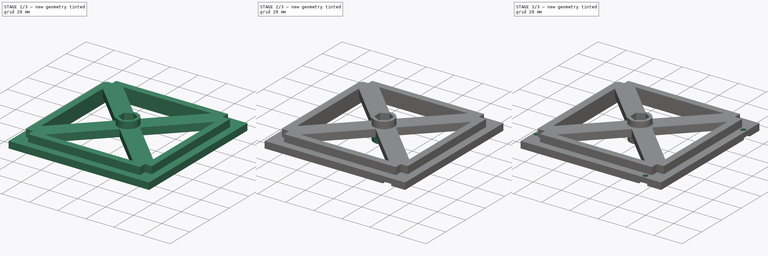
[diagram: build sequence overview — one tinted view per stage of 3, left to right]
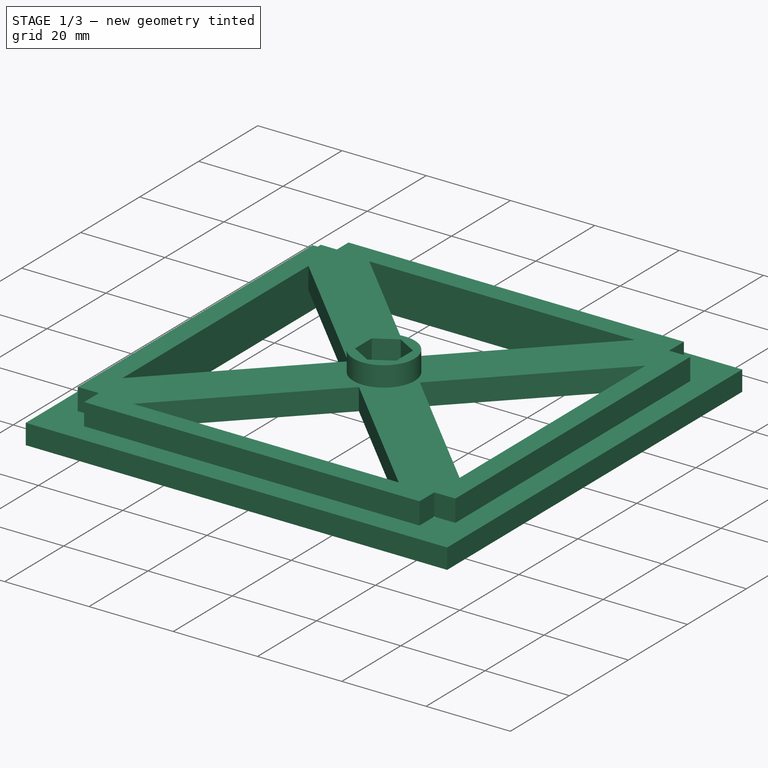
[diagram: stage 1 of 3 — iso view after this stage's code; geometry added in this stage tinted green]
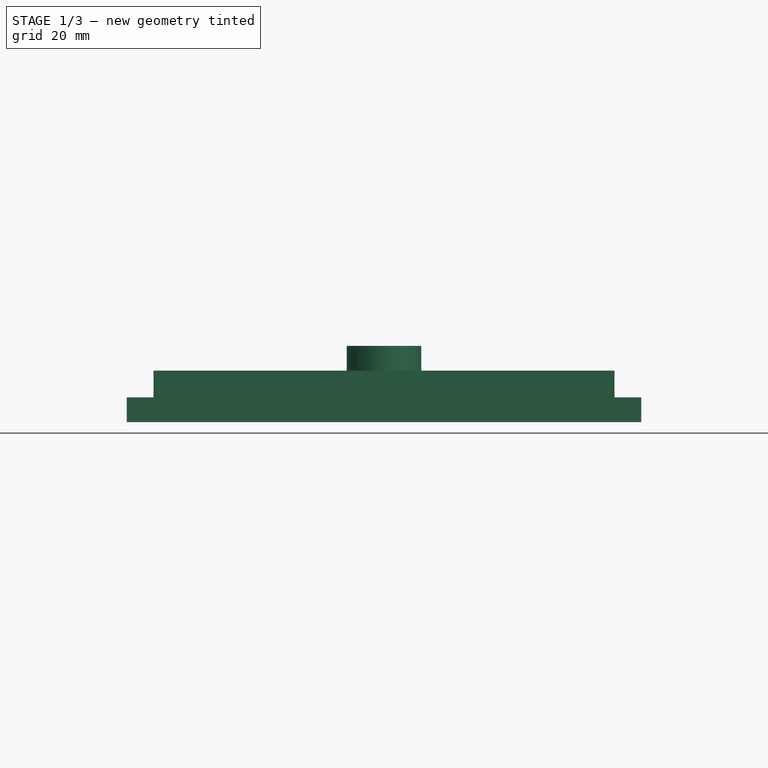
[diagram: stage 1 of 3 — front view after this stage's code; geometry added in this stage tinted green]
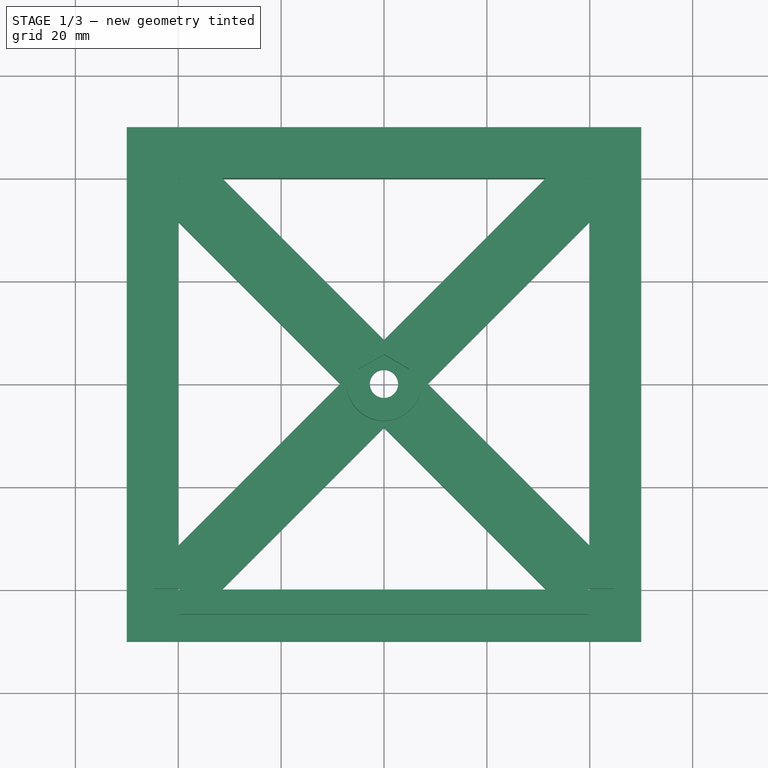
[diagram: stage 1 of 3 — top view after this stage's code; geometry added in this stage tinted green]
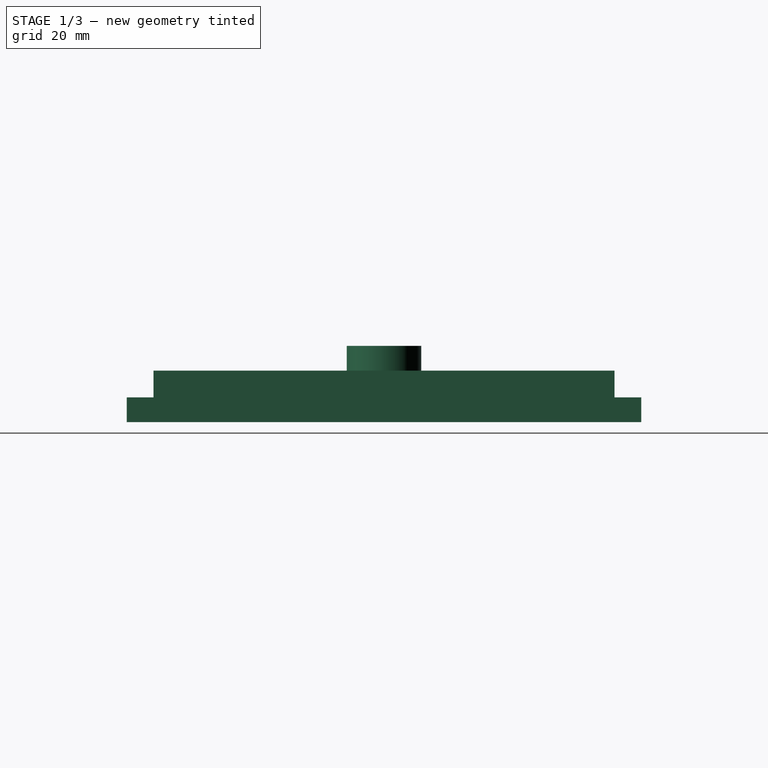
[diagram: stage 1 of 3 — right view after this stage's code; geometry added in this stage tinted green]
FCSTD DOCUMENT  (FreeCAD 0.21R33771 (Git))
Label: base
License: All rights reserved
LicenseURL: http://en.wikipedia.org/wiki/All_rights_reserved
objects: Sketcher::SketchObject×6, PartDesign::Pad×4, PartDesign::Pocket×2, PartDesign::PolarPattern×1, PartDesign::Fillet×1, PartDesign::Body×1
note: 22 computed .brp shape members not serialized (recipe doc carries the construction recipe); baked Part::Feature solids carry a one-line shape summary decoded from their .brp

FEATURE [Sketcher::SketchObject] Sketch
  FullyConstrained = true
  MapMode = 5
  Support = -> [XY_Plane]
  sketch-geometry (10):
    g0: LineSegment StartX=-40 StartY=40 StartZ=0 EndX=-40 EndY=-40 EndZ=0
    g1: LineSegment StartX=-40 StartY=-40 StartZ=0 EndX=40 EndY=-40 EndZ=0
    g2: LineSegment StartX=40 StartY=-40 StartZ=0 EndX=40 EndY=40 EndZ=0
    g3: LineSegment StartX=40 StartY=40 StartZ=0 EndX=-40 EndY=40 EndZ=0
    g4: GeomPoint X=0 Y=0 Z=0
    g5: LineSegment StartX=-50 StartY=50 StartZ=0 EndX=-50 EndY=-50 EndZ=0
    g6: LineSegment StartX=-50 StartY=-50 StartZ=0 EndX=50 EndY=-50 EndZ=0
    g7: LineSegment StartX=50 StartY=-50 StartZ=0 EndX=50 EndY=50 EndZ=0
    g8: LineSegment StartX=50 StartY=50 StartZ=0 EndX=-50 EndY=50 EndZ=0
    g9: GeomPoint X=0 Y=0 Z=0
  constraints (24):
    c: Coincident(g0,g1)
    c: Coincident(g1,g2)
    c: Coincident(g2,g3)
    c: Coincident(g3,g0)
    c: Horizontal(g1)
    c: Horizontal(g3)
    c: Vertical(g0)
    c: Vertical(g2)
    c: Symmetric(g1,g0,g4)
    c: Coincident(g4,g-1)
    c: DistanceX(g3,g3) = 80
    c: DistanceY(g2,g2) = 80
    c: Coincident(g5,g6)
    c: Coincident(g6,g7)
    c: Coincident(g7,g8)
    c: Coincident(g8,g5)
    c: Horizontal(g6)
    c: Horizontal(g8)
    c: Vertical(g5)
    c: Vertical(g7)
    c: Symmetric(g6,g5,g9)
    c: Coincident(g9,g4)
    c: DistanceX(g8,g8) = 100
    c: DistanceY(g7,g7) = 100
FEATURE [PartDesign::Pad] Pad  label="latches"
  Direction = (0,0,1)
  Length = 4.8
  Length2 = 10
  Profile = -> Sketch
  ReferenceAxis = -> Sketch [N_Axis]
  Refine = true
  Type = 0
FEATURE [Sketcher::SketchObject] Sketch001
  FullyConstrained = false
  MapMode = 5
  Placement = pos=(0,0,4.8) rot=(0,0,1;0rad)
  Support = -> [Pad]
  sketch-geometry (29):
    g0: LineSegment StartX=-44.8 StartY=39.8 StartZ=0 EndX=-44.8 EndY=-39.8 EndZ=0
    g1: GeomPoint X=-42.25 Y=0 Z=0
    g2: LineSegment StartX=44.8 StartY=-39.8 StartZ=0 EndX=44.8 EndY=39.8 EndZ=0
    g3: GeomPoint X=42.25 Y=0 Z=0
    g4: LineSegment StartX=-39.8 StartY=-44.8 StartZ=0 EndX=39.8 EndY=-44.8 EndZ=0
    g5: GeomPoint X=0 Y=-42.25 Z=0
    g6: LineSegment StartX=39.8 StartY=44.8 StartZ=0 EndX=-39.8 EndY=44.8 EndZ=0
    g7: GeomPoint X=0 Y=42.25 Z=0
    g8: LineSegment StartX=-39.8 StartY=39.8 StartZ=0 EndX=-39.8 EndY=44.8 EndZ=0
    g9: LineSegment StartX=-44.8 StartY=-39.8 StartZ=0 EndX=-39.8 EndY=-39.8 EndZ=0
    g10: LineSegment StartX=-39.8 StartY=-39.8 StartZ=0 EndX=-39.8 EndY=-44.8 EndZ=0
    g11: LineSegment StartX=44.8 StartY=-39.8 StartZ=0 EndX=39.8 EndY=-39.8 EndZ=0
    g12: LineSegment StartX=39.8 StartY=44.8 StartZ=0 EndX=39.8 EndY=39.8 EndZ=0
    g13: LineSegment StartX=-31.5 StartY=40 StartZ=0 EndX=0 EndY=8.5 EndZ=0
    g14: LineSegment StartX=-40 StartY=31.5 StartZ=0 EndX=-8.5 EndY=3.6e-15 EndZ=0
    g15: LineSegment StartX=0 StartY=8.5 StartZ=0 EndX=31.5 EndY=40 EndZ=0
    g16: LineSegment StartX=8.5 StartY=0 StartZ=0 EndX=40 EndY=31.5 EndZ=0
    g17: LineSegment StartX=8.5 StartY=0 StartZ=0 EndX=40 EndY=-31.5 EndZ=0
    g18: LineSegment StartX=0 StartY=-8.5 StartZ=0 EndX=31.5 EndY=-40 EndZ=0
    g19: LineSegment StartX=0 StartY=-8.5 StartZ=0 EndX=-31.5 EndY=-40 EndZ=0
    g20: LineSegment StartX=-8.5 StartY=3.6e-15 StartZ=0 EndX=-40 EndY=-31.5 EndZ=0
    g21: LineSegment StartX=-31.5 StartY=40 StartZ=0 EndX=31.5 EndY=40 EndZ=0
    g22: LineSegment StartX=40 StartY=31.5 StartZ=0 EndX=40 EndY=-31.5 EndZ=0
    g23: LineSegment StartX=31.5 StartY=-40 StartZ=0 EndX=-31.5 EndY=-40 EndZ=0
    g24: LineSegment StartX=-40 StartY=31.5 StartZ=0 EndX=-40 EndY=-31.5 EndZ=0
    g25: LineSegment StartX=-44.8 StartY=39.8 StartZ=0 EndX=-39.8 EndY=39.8 EndZ=0
    g26: LineSegment StartX=39.8 StartY=39.8 StartZ=0 EndX=44.8 EndY=39.8 EndZ=0
    g27: LineSegment StartX=39.8 StartY=-39.8 StartZ=0 EndX=39.8 EndY=-44.8 EndZ=0
    g28: Circle CenterX=0 CenterY=0 CenterZ=0 NormalX=0 NormalY=0 NormalZ=1 AngleXU=0 Radius=2.75
  constraints (74):
    c: Vertical(g0)
    c: PointOnObject(g1,g-1)
    c: Vertical(g2)
    c: PointOnObject(g3,g-1)
    c: Horizontal(g4)
    c: PointOnObject(g5,g-2)
    c: Horizontal(g6)
    c: PointOnObject(g7,g-2)
    c: Horizontal(g0,g2)
    c: DistanceX(g6,g6) = 79.6
    c: Coincident(g8,g6)
    c: Coincident(g9,g0)
    c: Horizontal(g9)
    c: Coincident(g10,g9)
    c: Coincident(g10,g4)
    c: Vertical(g10)
    c: Vertical(g8)
    c: Coincident(g11,g2)
    c: Coincident(g12,g6)
    c: Vertical(g12)
    c: Horizontal(g11)
    c: Symmetric(g12,g9,g-1)
    c: Symmetric(g8,g11,g-1)
    c: PointOnObject(g13,g-2)
    c: PointOnObject(g14,g-1)
    c: Coincident(g15,g13)
    c: PointOnObject(g16,g-1)
    c: Coincident(g17,g16)
    c: PointOnObject(g18,g-2)
    c: Coincident(g19,g18)
    c: Coincident(g20,g14)
    c: Coincident(g21,g13)
    c: Coincident(g21,g15)
    c: Horizontal(g21)
    c: Coincident(g22,g16)
    c: Coincident(g22,g17)
    c: Vertical(g22)
    c: Coincident(g23,g18)
    c: Coincident(g23,g19)
    c: Horizontal(g23)
    c: Coincident(g24,g14)
    c: Coincident(g24,g20)
    c: Vertical(g24)
    c: Angle(g23,g19) = 0.785398
    c: Angle(g18,g23) = 0.785398
    c: Parallel(g18,g17)
    c: Parallel(g19,g20)
    c: Parallel(g18,g14)
    c: Parallel(g19,g16)
    c: Parallel(g15,g16)
    c: Parallel(g13,g14)
    c: Symmetric(g17,g20,g-2)
    c: Symmetric(g13,g19,g-1)
    c: DistanceX(g14,g16) = 17
    c: DistanceY(g18,g13) = 17
    c: Coincident(g25,g0)
    c: Coincident(g25,g8)
    c: Horizontal(g25)
    c: Coincident(g26,g12)
    c: Coincident(g26,g2)
    c: Horizontal(g26)
    c: Coincident(g27,g11)
    c: Coincident(g27,g4)
    c: Vertical(g27)
    c: Equal(g24,g23)
    c: Equal(g9,g10)
    c: Equal(g9,g11)
    c: Equal(g9,g26)
    c: Equal(g6,g0)
    c: Equal(g10,g8)
    c: DistanceX(g0,g20) = 4.8
    c: DistanceX(g11,g11) = 5
    c: Coincident(g28,g-1)
    c: Diameter(g28) = 5.5
FEATURE [PartDesign::Pad] Pad001  label="base"
  BaseFeature = -> Pad
  Direction = (0,0,1)
  Length = 5.2
  Length2 = 10
  Profile = -> Sketch001
  ReferenceAxis = -> Sketch001 [N_Axis]
  Refine = true
  Type = 0
FEATURE [Sketcher::SketchObject] Sketch002
  FullyConstrained = true
  MapMode = 5
  Placement = pos=(0,0,10) rot=(0,0,1;0rad)
  Support = -> [Pad001]
  sketch-geometry (8):
    g0: LineSegment StartX=0 StartY=-5.65803 StartZ=0 EndX=4.9 EndY=-2.82902 EndZ=0
    g1: LineSegment StartX=4.9 StartY=-2.82902 StartZ=0 EndX=4.9 EndY=2.82902 EndZ=0
    g2: LineSegment StartX=4.9 StartY=2.82902 StartZ=0 EndX=2.478e-13 EndY=5.65803 EndZ=0
    g3: LineSegment StartX=2.478e-13 StartY=5.65803 StartZ=0 EndX=-4.9 EndY=2.82902 EndZ=0
    g4: LineSegment StartX=-4.9 StartY=2.82902 StartZ=0 EndX=-4.9 EndY=-2.82902 EndZ=0
    g5: LineSegment StartX=-4.9 StartY=-2.82902 StartZ=0 EndX=0 EndY=-5.65803 EndZ=0
    g6: Circle CenterX=0 CenterY=0 CenterZ=0 NormalX=0 NormalY=0 NormalZ=1 AngleXU=0 Radius=5.65803
    g7: Circle CenterX=0 CenterY=0 CenterZ=0 NormalX=0 NormalY=0 NormalZ=1 AngleXU=0 Radius=7.25
  constraints (18):
    c: Coincident(g0,g1)
    c: Coincident(g1,g2)
    c: Coincident(g2,g3)
    c: Coincident(g3,g4)
    c: Coincident(g4,g5)
    c: Coincident(g5,g0)
    c: Equal(g0, g1-g5) x5
    c: PointOnObject(g0,g6)
    c: PointOnObject(g1,g6)
    c: PointOnObject(g2,g6)
    c: PointOnObject(g3,g6)
    c: PointOnObject(g4,g6)
    c: PointOnObject(g5,g6)
    c: Coincident(g6,g-1)
    c: PointOnObject(g5,g-2)
    c: DistanceX(g4,g0) = 9.8
    c: Coincident(g7,g6)
    c: Diameter(g7) = 14.5
FEATURE [PartDesign::Pad] Pad002  label="stud_up"
  BaseFeature = -> Pad001
  Direction = (0,0,1)
  Length = 4.8
  Length2 = 10
  Profile = -> Sketch002
  ReferenceAxis = -> Sketch002 [N_Axis]
  Type = 0
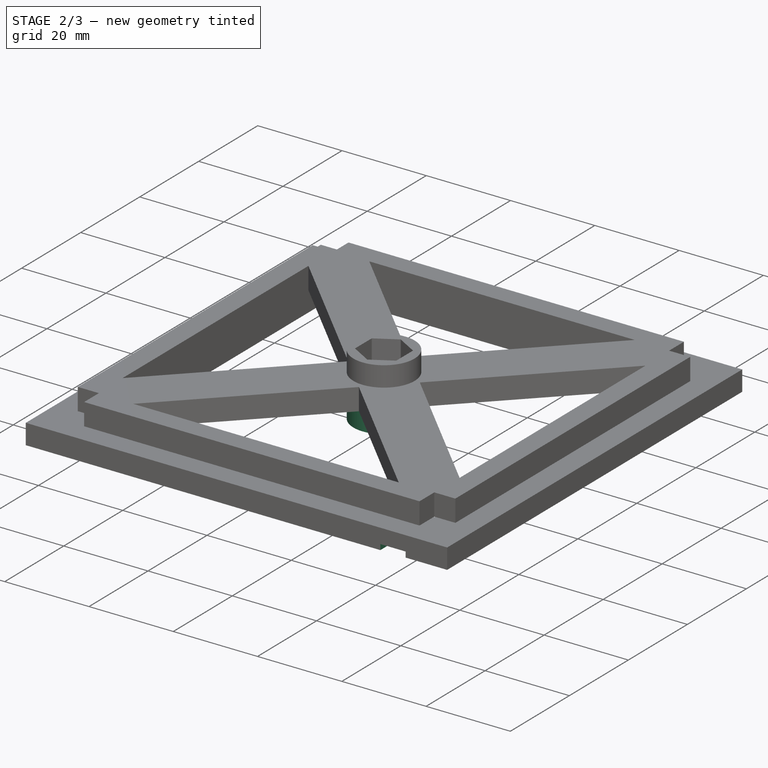
[diagram: stage 2 of 3 — iso view after this stage's code; geometry added in this stage tinted green]
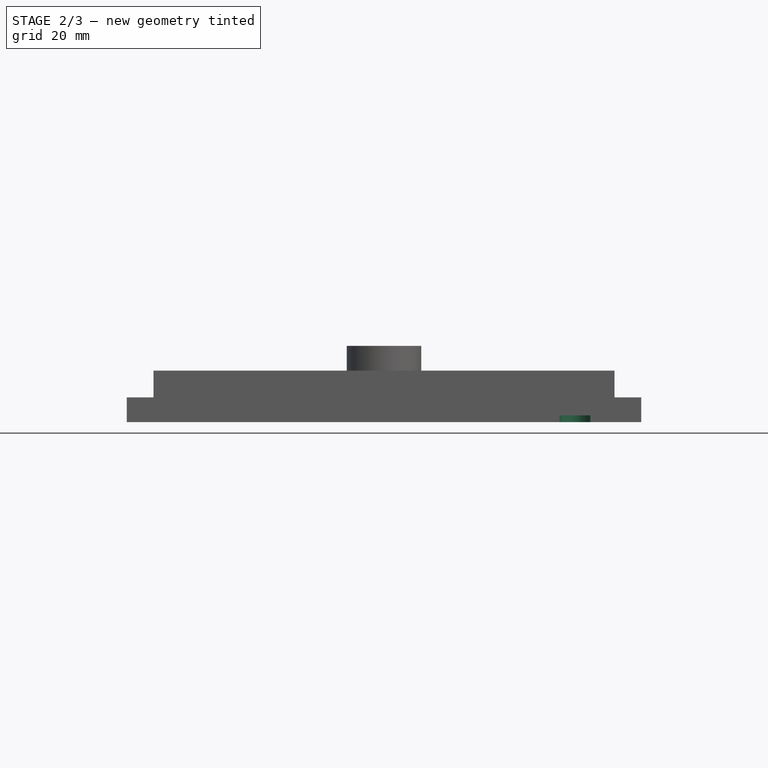
[diagram: stage 2 of 3 — front view after this stage's code; geometry added in this stage tinted green]
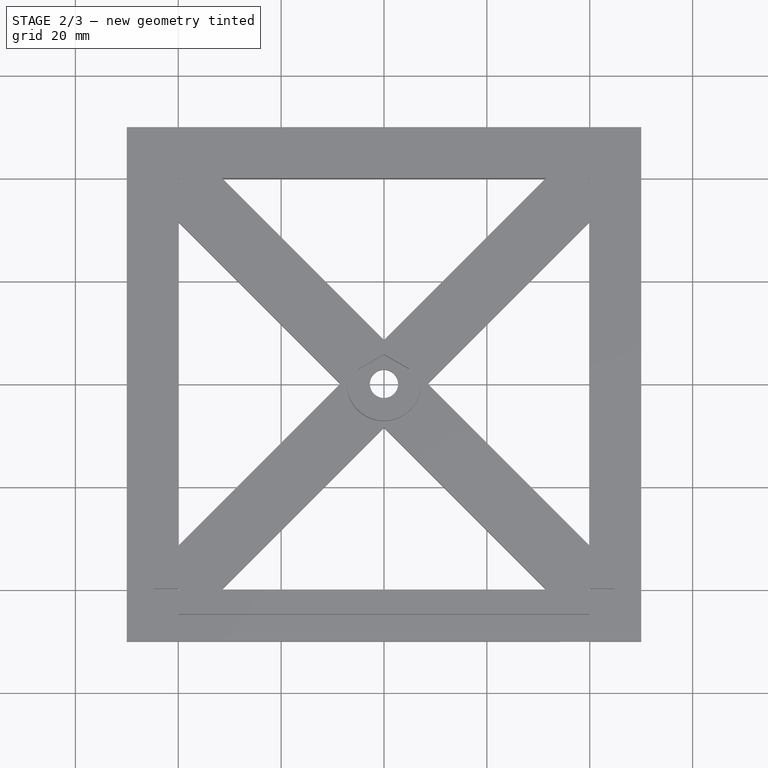
[diagram: stage 2 of 3 — top view after this stage's code; geometry added in this stage tinted green]
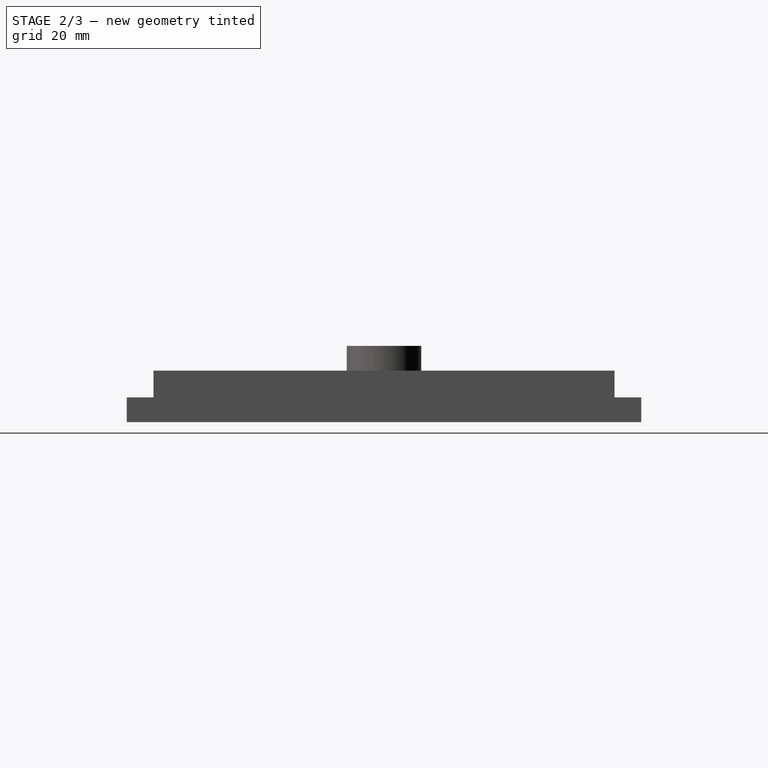
[diagram: stage 2 of 3 — right view after this stage's code; geometry added in this stage tinted green]
FEATURE [Sketcher::SketchObject] Sketch003
  FullyConstrained = true
  MapMode = 5
  Placement = pos=(0,0,4.8) rot=(1,0,0;3.14159rad)
  Support = -> [Pad002]
  sketch-geometry (8):
    g0: LineSegment StartX=0 StartY=-5.65803 StartZ=0 EndX=4.9 EndY=-2.82902 EndZ=0
    g1: LineSegment StartX=4.9 StartY=-2.82902 StartZ=0 EndX=4.9 EndY=2.82902 EndZ=0
    g2: LineSegment StartX=4.9 StartY=2.82902 StartZ=0 EndX=3.4825e-12 EndY=5.65803 EndZ=0
    g3: LineSegment StartX=3.4825e-12 StartY=5.65803 StartZ=0 EndX=-4.9 EndY=2.82902 EndZ=0
    g4: LineSegment StartX=-4.9 StartY=2.82902 StartZ=0 EndX=-4.9 EndY=-2.82902 EndZ=0
    g5: LineSegment StartX=-4.9 StartY=-2.82902 StartZ=0 EndX=0 EndY=-5.65803 EndZ=0
    g6: Circle CenterX=0 CenterY=0 CenterZ=0 NormalX=0 NormalY=0 NormalZ=1 AngleXU=0 Radius=5.65803
    g7: Circle CenterX=0 CenterY=0 CenterZ=0 NormalX=0 NormalY=0 NormalZ=1 AngleXU=0 Radius=7.25
  constraints (18):
    c: Coincident(g0,g1)
    c: Coincident(g1,g2)
    c: Coincident(g2,g3)
    c: Coincident(g3,g4)
    c: Coincident(g4,g5)
    c: Coincident(g5,g0)
    c: Equal(g0, g1-g5) x5
    c: PointOnObject(g0,g6)
    c: PointOnObject(g1,g6)
    c: PointOnObject(g2,g6)
    c: PointOnObject(g3,g6)
    c: PointOnObject(g4,g6)
    c: PointOnObject(g5,g6)
    c: Coincident(g6,g-1)
    c: PointOnObject(g5,g-2)
    c: DistanceX(g4,g0) = 9.8
    c: Coincident(g7,g6)
    c: Diameter(g7) = 14.5
FEATURE [PartDesign::Pad] Pad003  label="stud_down"
  BaseFeature = -> Pad002
  Direction = (0,0,-1)
  Length = 4.8
  Length2 = 10
  Profile = -> Sketch003
  ReferenceAxis = -> Sketch003 [N_Axis]
  Type = 0
FEATURE [Sketcher::SketchObject] Sketch005
  FullyConstrained = true
  MapMode = 5
  Placement = pos=(0,0,0) rot=(1,0,0;3.14159rad)
  sketch-geometry (4):
    g0: ArcOfCircle CenterX=37.15 CenterY=47.5 CenterZ=0 NormalX=0 NormalY=0 NormalZ=1 AngleXU=0 Radius=3 StartAngle=3.14159 EndAngle=6.28319
    g1: LineSegment StartX=34.15 StartY=47.5 StartZ=0 EndX=34.15 EndY=50 EndZ=0
    g2: LineSegment StartX=34.15 StartY=50 StartZ=0 EndX=40.15 EndY=50 EndZ=0
    g3: LineSegment StartX=40.15 StartY=50 StartZ=0 EndX=40.15 EndY=47.5 EndZ=0
  constraints (13):
    c: Diameter(g0) = 6
    c: DistanceY(g-1,g0) = 47.5
    c: Horizontal(g0,g0)
    c: Horizontal(g0,g0)
    c: DistanceX(g-1,g0) = 37.15
    c: Coincident(g1,g0)
    c: Vertical(g1)
    c: Coincident(g2,g1)
    c: Horizontal(g2)
    c: Coincident(g3,g2)
    c: Coincident(g3,g0)
    c: Vertical(g3)
    c: DistanceY(g-1,g1) = 50
FEATURE [PartDesign::Pocket] Pocket001
  BaseFeature = -> Pad003
  Direction = (0,0,1)
  Length = 1.3
  Length2 = 5
  Profile = -> Sketch005
  ReferenceAxis = -> Sketch005 [N_Axis]
  Type = 0
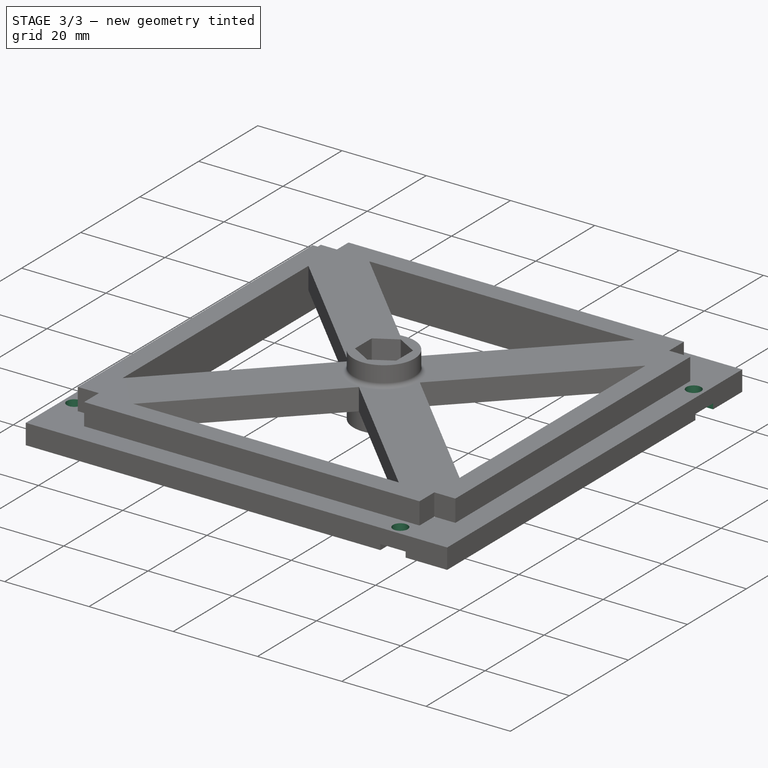
[diagram: stage 3 of 3 — iso view after this stage's code; geometry added in this stage tinted green]
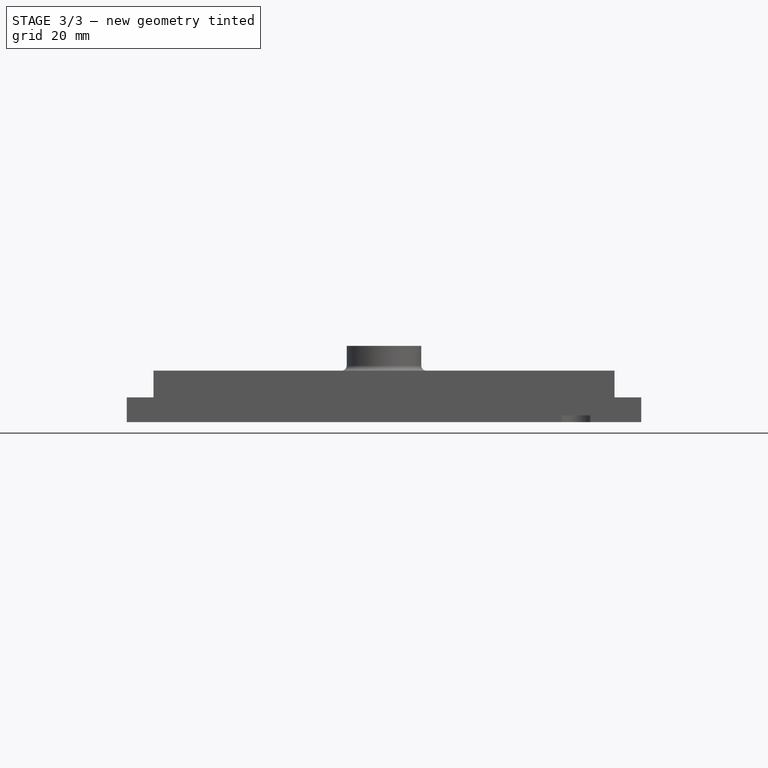
[diagram: stage 3 of 3 — front view after this stage's code; geometry added in this stage tinted green]
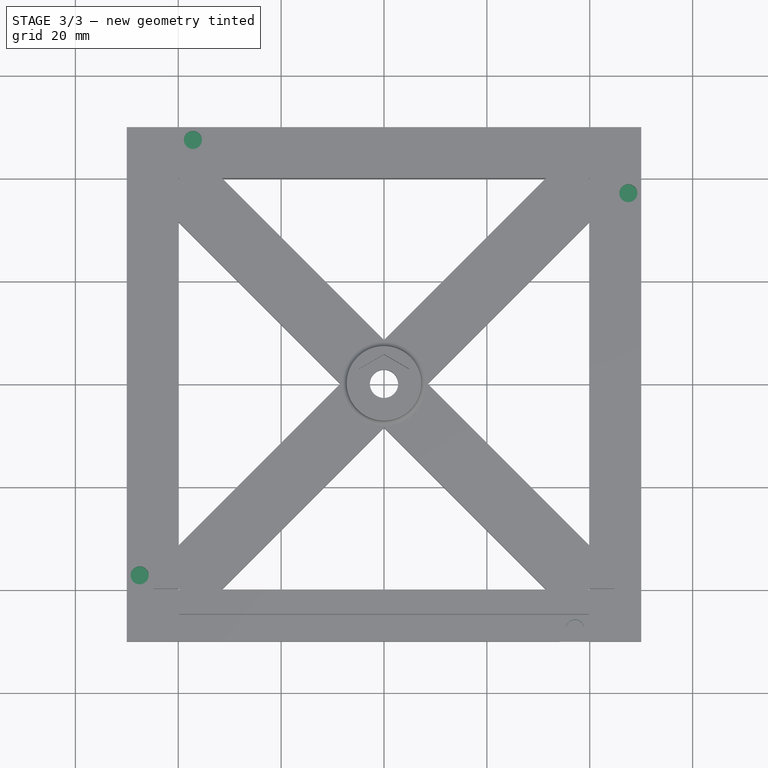
[diagram: stage 3 of 3 — top view after this stage's code; geometry added in this stage tinted green]
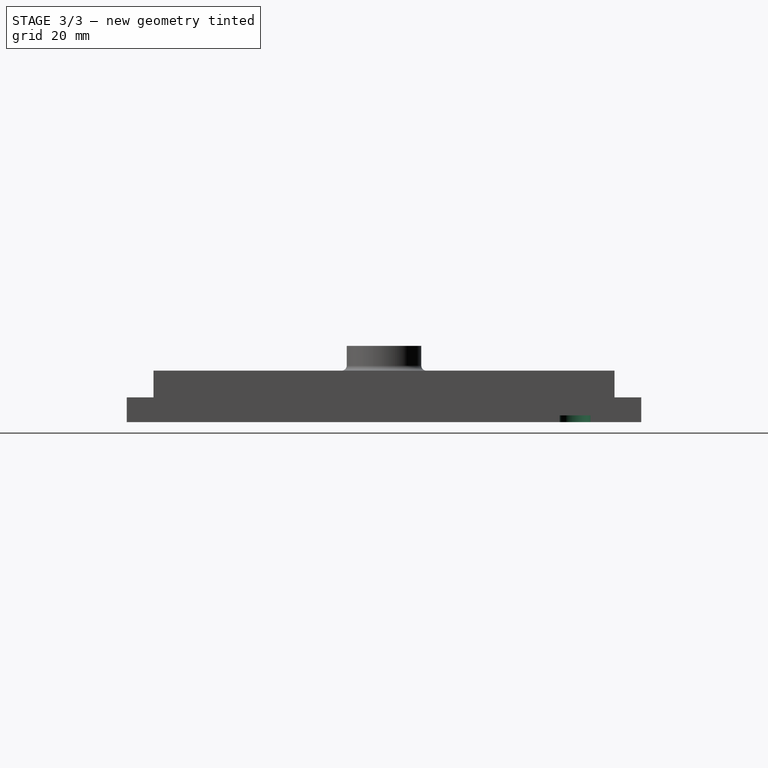
[diagram: stage 3 of 3 — right view after this stage's code; geometry added in this stage tinted green]
FEATURE [Sketcher::SketchObject] Sketch006
  FullyConstrained = true
  MapMode = 5
  Placement = pos=(0,0,4.8) rot=(0,0,1;0rad)
  Support = -> [Pocket001]
  sketch-geometry (1):
    g0: Circle CenterX=37.15 CenterY=-47.5 CenterZ=0 NormalX=0 NormalY=0 NormalZ=1 AngleXU=0 Radius=1.75
  constraints (3):
    c: DistanceY(g0,g-1) = 47.5
    c: DistanceX(g-1,g0) = 37.15
    c: Diameter(g0) = 3.5
FEATURE [PartDesign::Pocket] Pocket002
  BaseFeature = -> Pocket001
  Direction = (0,0,-1)
  Length = 3.49
  Length2 = 5
  Profile = -> Sketch006
  ReferenceAxis = -> Sketch006 [N_Axis]
  Type = 0
FEATURE [PartDesign::PolarPattern] PolarPattern  label="screwholes"
  Angle = 360
  Axis = -> Sketch006 [N_Axis]
  BaseFeature = -> Pocket002
  Occurrences = 4
  Originals = -> [Pocket002,Pocket001]
  Refine = true
FEATURE [PartDesign::Fillet] Fillet
  Base = -> PolarPattern [Edge167,Edge161]
  BaseFeature = -> PolarPattern
  Radius = 1
  SupportTransform = false
  UseAllEdges = false
FEATURE [PartDesign::Body] Body
  Group = -> [Sketch,Pad,Sketch001,Pad001,Sketch002,Pad002,Sketch003,Pad003,Sketch005,Pocket001,Sketch006,Pocket002,PolarPattern,Fillet]
  Origin = -> Origin
  Tip = -> Fillet
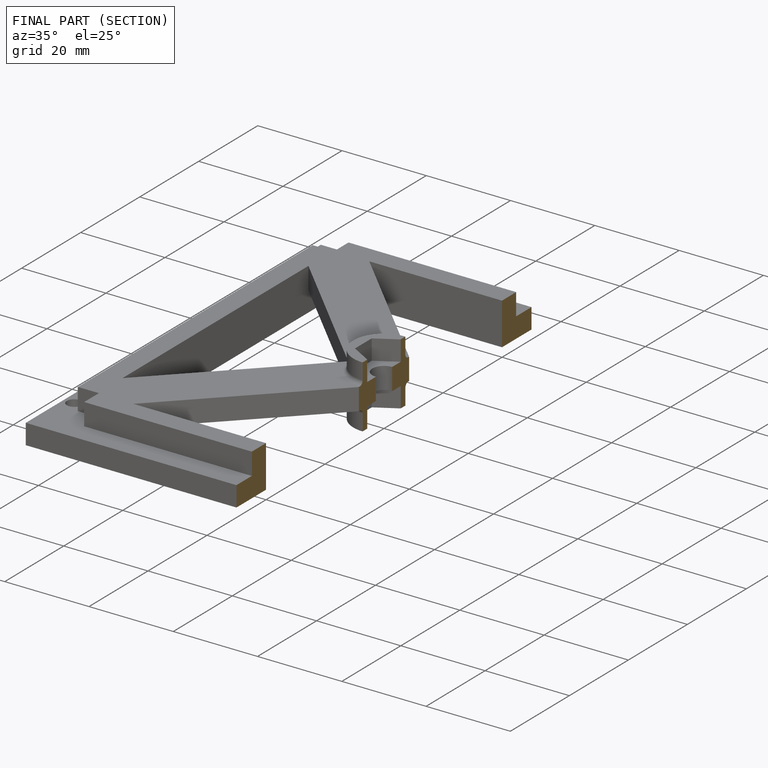
[diagram: finished part — half-section view (interior)]
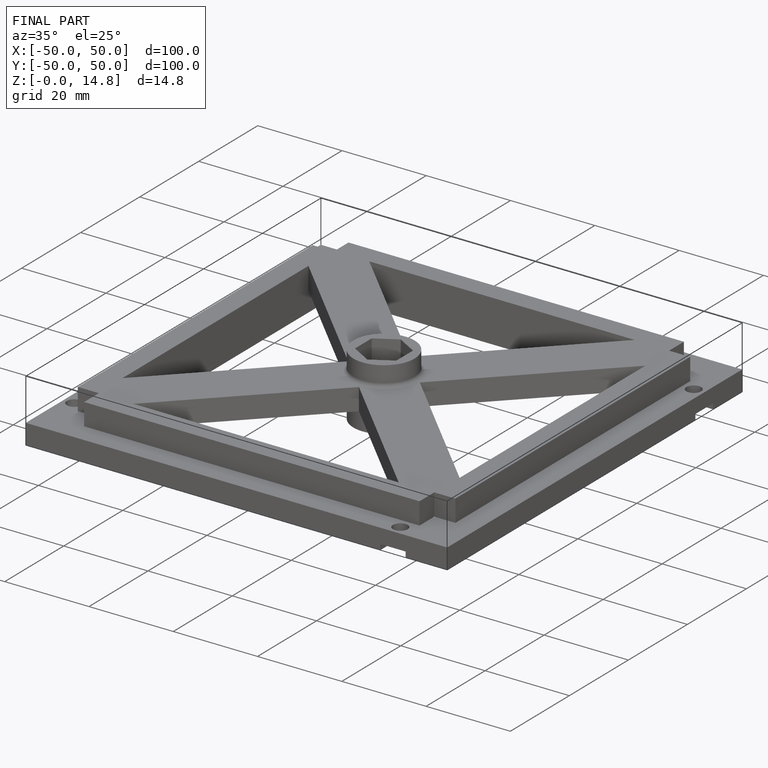
[diagram: finished part — iso view with bounding-box wireframe]
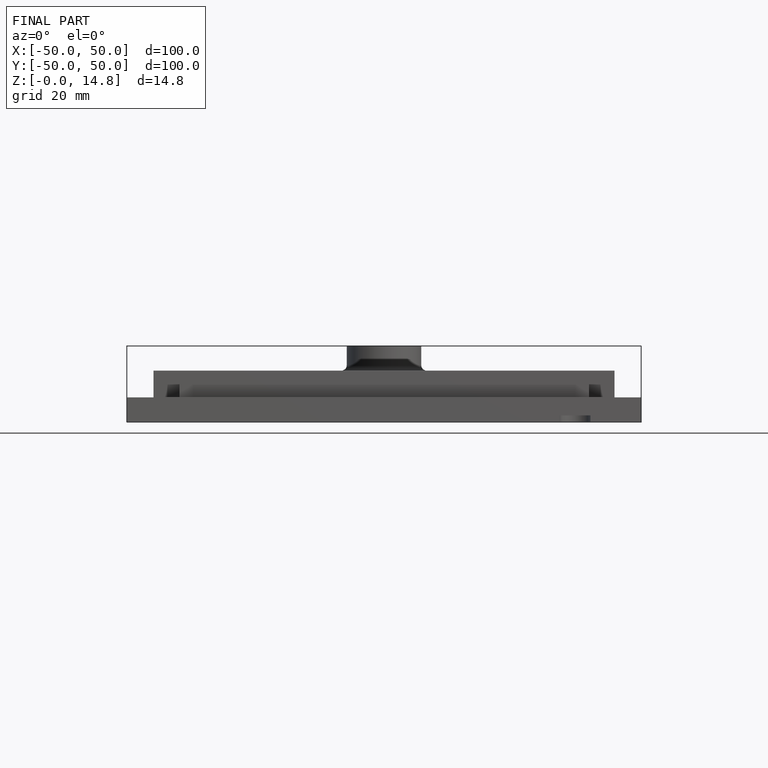
[diagram: finished part — front view with bounding-box wireframe]
